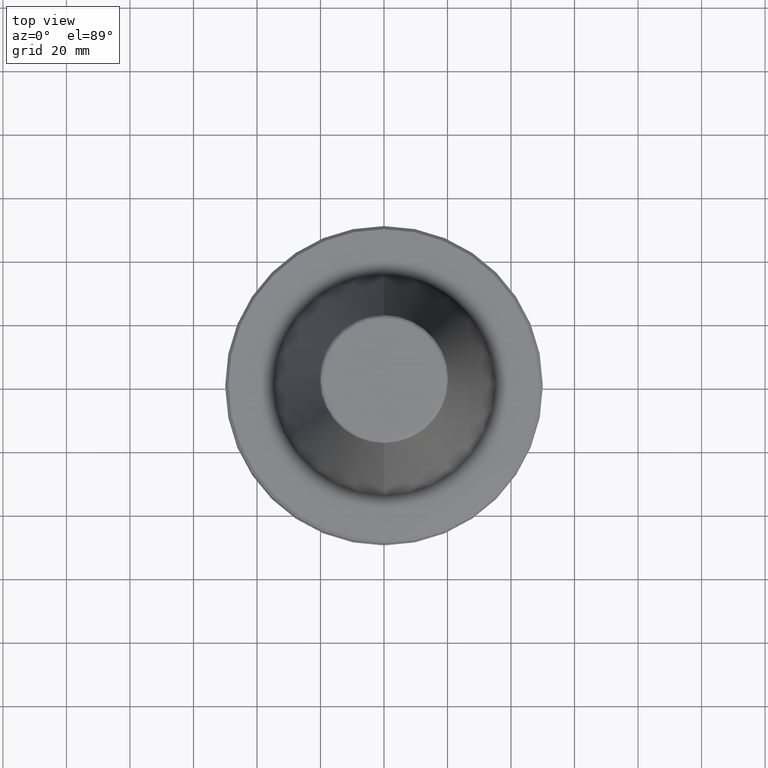
[diagram: clean part render]
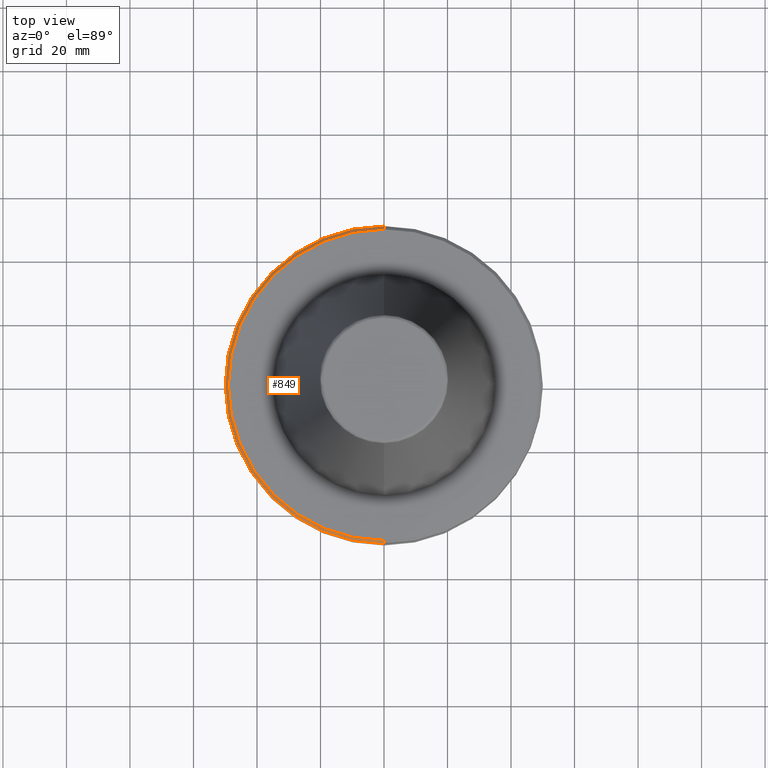
[diagram: same view with one face highlighted and labeled with its STEP entity id]
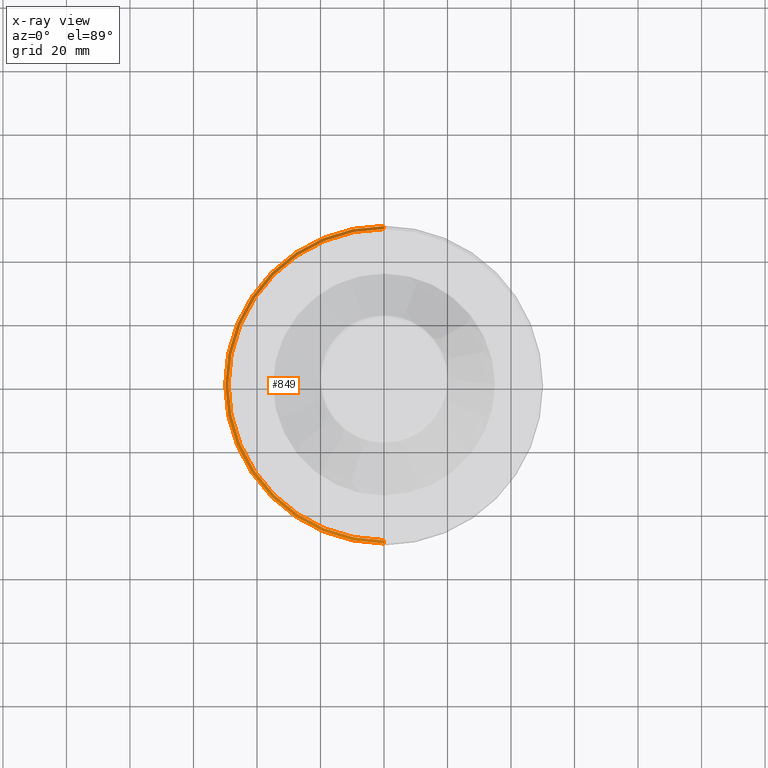
[diagram: x-ray of the same camera — body ghosted, the highlighted face saturated]
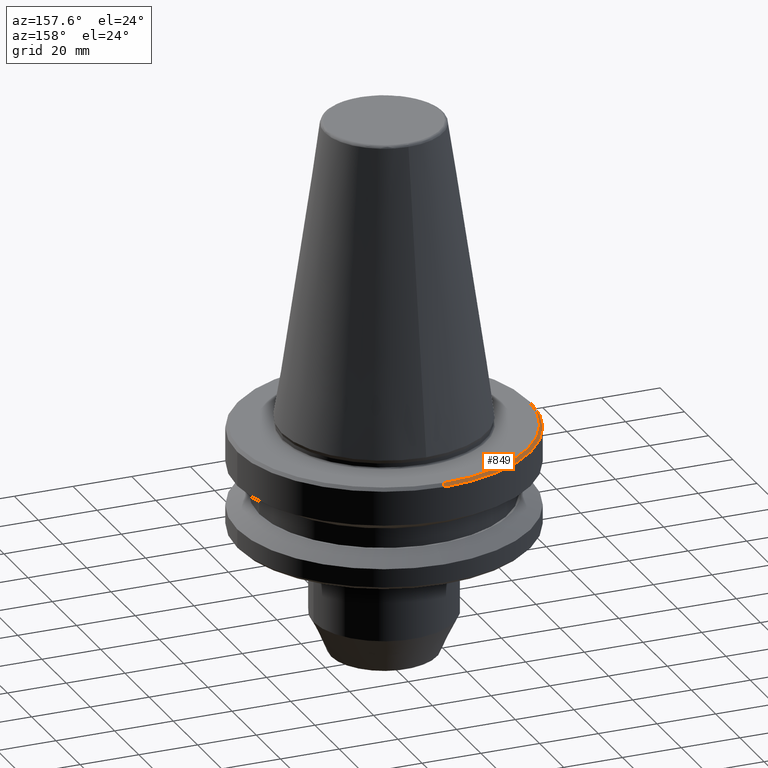
[diagram: same view with one face highlighted and labeled with its STEP entity id]
A machine part, top view. The second image highlights one B-rep face of the part: STEP entity #849.
The next image is the same camera in x-ray: the body ghosted, the highlighted face saturated — about 0% of this face is hidden behind the body in this view.
A second angle (auxiliary view) of the same face is appended — the face is thin or edge-on in the first view.
In plain terms, the highlighted conical surface has half-angle 45 deg.
Its self-contained STEP definition (entity closure, byte-faithful):
#26 = AXIS2_PLACEMENT_3D ( 'NONE', #961, #1107, #1106 ) ;
#31 = ORIENTED_EDGE ( 'NONE', *, *, #254, .T. ) ;
#82 = CIRCLE ( 'NONE', #1143, 50.00000000000000000 ) ;
#85 = VERTEX_POINT ( 'NONE', #183 ) ;
#104 = FACE_OUTER_BOUND ( 'NONE', #433, .T. ) ;
#134 = CIRCLE ( 'NONE', #1171, 49.00000000000000000 ) ;
#145 = VERTEX_POINT ( 'NONE', #667 ) ;
#171 = ORIENTED_EDGE ( 'NONE', *, *, #1015, .T. ) ;
#183 = CARTESIAN_POINT ( 'NONE',  ( -50.00000000000000000, 6.123233995736766100E-015, -3.999999999999989800 ) ) ;
#187 = VECTOR ( 'NONE', #803, 999.9999999999998900 ) ;
#197 = EDGE_CURVE ( 'NONE', #270, #648, #445, .T. ) ;
#206 = EDGE_CURVE ( 'NONE', #85, #648, #1077, .T. ) ;
#230 = DIRECTION ( 'NONE',  ( 8.659560562354937800E-017, -0.7071067811865479100, -0.7071067811865472400 ) ) ;
#233 = DIRECTION ( 'NONE',  ( -0.0000000000000000000, -0.0000000000000000000, 1.000000000000000000 ) ) ;
#254 = EDGE_CURVE ( 'NONE', #270, #395, #134, .T. ) ;
#270 = VERTEX_POINT ( 'NONE', #386 ) ;
#383 = CARTESIAN_POINT ( 'NONE',  ( 0.0000000000000000000, -8.673617379884097100E-018, -2.999999999999988900 ) ) ;
#386 = CARTESIAN_POINT ( 'NONE',  ( 6.062001655779398500E-015, -49.00000000000000000, -2.999999999999989300 ) ) ;
#395 = VERTEX_POINT ( 'NONE', #1368 ) ;
#433 = EDGE_LOOP ( 'NONE', ( #1097, #31, #171, #808, #1003 ) ) ;
#445 = LINE ( 'NONE', #875, #536 ) ;
#452 = LINE ( 'NONE', #823, #187 ) ;
#494 = DIRECTION ( 'NONE',  ( 0.0000000000000000000, 1.000000000000000000, 8.850629979473505400E-018 ) ) ;
#536 = VECTOR ( 'NONE', #230, 999.9999999999998900 ) ;
#648 = VERTEX_POINT ( 'NONE', #1127 ) ;
#667 = CARTESIAN_POINT ( 'NONE',  ( 0.0000000000000000000, 50.00000000000000000, -3.999999999999989800 ) ) ;
#803 = DIRECTION ( 'NONE',  ( 0.0000000000000000000, 0.7071067811865479100, -0.7071067811865472400 ) ) ;
#808 = ORIENTED_EDGE ( 'NONE', *, *, #864, .T. ) ;
#823 = CARTESIAN_POINT ( 'NONE',  ( 0.0000000000000000000, 50.00000000000000700, -3.999999999999994700 ) ) ;
#849 = ADVANCED_FACE ( 'NONE', ( #104 ), #1286, .T. ) ;
#864 = EDGE_CURVE ( 'NONE', #145, #85, #82, .T. ) ;
#875 = CARTESIAN_POINT ( 'NONE',  ( 6.123233995736766900E-015, -50.00000000000000700, -3.999999999999996400 ) ) ;
#880 = CARTESIAN_POINT ( 'NONE',  ( 0.0000000000000000000, 0.0000000000000000000, -3.999999999999989800 ) ) ;
#886 = DIRECTION ( 'NONE',  ( -1.000000000000000000, -8.881784197001252300E-016, -3.469446951953614200E-017 ) ) ;
#887 = DIRECTION ( 'NONE',  ( -0.0000000000000000000, -0.0000000000000000000, 1.000000000000000000 ) ) ;
#890 = CARTESIAN_POINT ( 'NONE',  ( 0.0000000000000000000, 0.0000000000000000000, -3.999999999999989800 ) ) ;
#961 = CARTESIAN_POINT ( 'NONE',  ( 0.0000000000000000000, 0.0000000000000000000, -3.999999999999995600 ) ) ;
#995 = DIRECTION ( 'NONE',  ( -1.000000000000000000, 0.0000000000000000000, -3.469446951953614200E-017 ) ) ;
#1003 = ORIENTED_EDGE ( 'NONE', *, *, #206, .T. ) ;
#1015 = EDGE_CURVE ( 'NONE', #395, #145, #452, .T. ) ;
#1077 = CIRCLE ( 'NONE', #1343, 50.00000000000000000 ) ;
#1097 = ORIENTED_EDGE ( 'NONE', *, *, #197, .F. ) ;
#1106 = DIRECTION ( 'NONE',  ( 0.0000000000000000000, 1.000000000000000000, 1.734723475976806800E-017 ) ) ;
#1107 = DIRECTION ( 'NONE',  ( 0.0000000000000000000, 8.673617379884035500E-018, -1.000000000000000000 ) ) ;
#1127 = CARTESIAN_POINT ( 'NONE',  ( 6.123233995736766100E-015, -50.00000000000000000, -3.999999999999989800 ) ) ;
#1143 = AXIS2_PLACEMENT_3D ( 'NONE', #890, #887, #886 ) ;
#1166 = DIRECTION ( 'NONE',  ( 0.0000000000000000000, 8.673617379884035500E-018, -1.000000000000000000 ) ) ;
#1171 = AXIS2_PLACEMENT_3D ( 'NONE', #383, #1166, #494 ) ;
#1286 = CONICAL_SURFACE ( 'NONE', #26, 50.00000000000000700, 0.7853981633974487200 ) ;
#1343 = AXIS2_PLACEMENT_3D ( 'NONE', #880, #233, #995 ) ;
#1368 = CARTESIAN_POINT ( 'NONE',  ( 0.0000000000000000000, 49.00000000000000000, -2.999999999999988500 ) ) ;